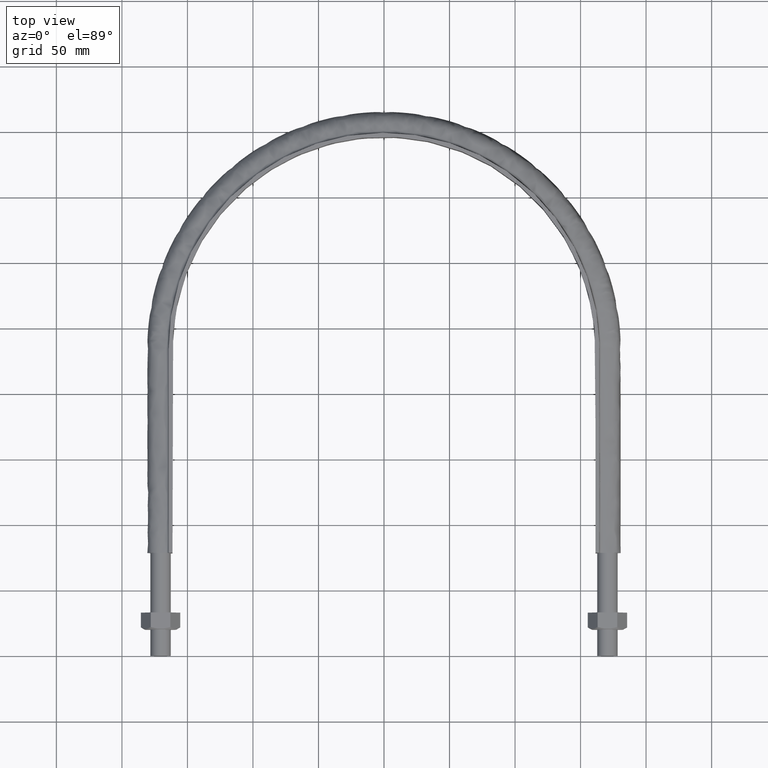
[diagram: clean part render]
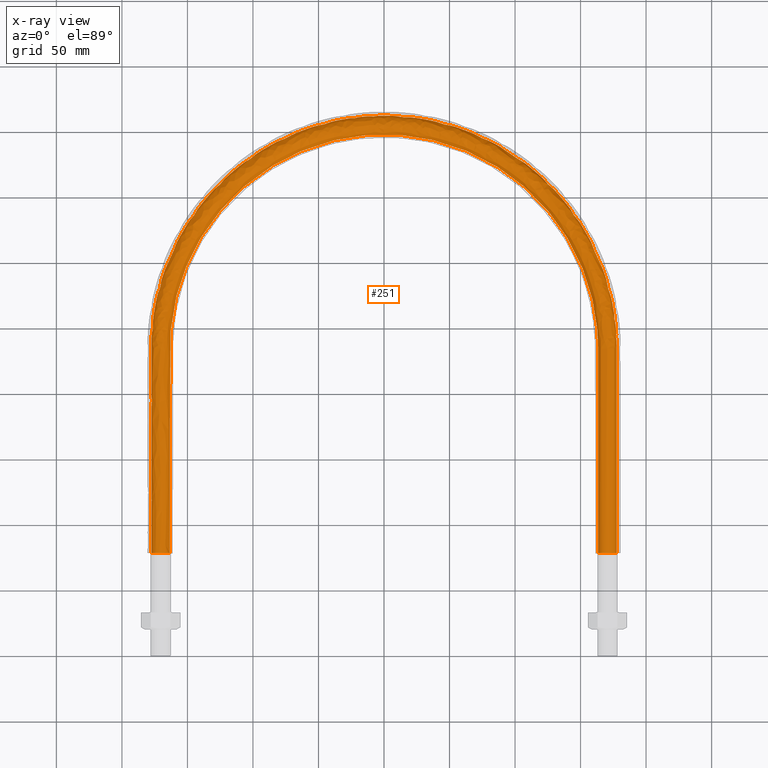
[diagram: x-ray — body ghosted, one internal face saturated and labeled with its STEP entity id]
A machine part, top view, then the same camera in x-ray: the body is ghosted and one INTERNAL B-rep face — a face not visible from any outside direction — is saturated and labeled: STEP entity #251.
In plain terms, the highlighted face is a freeform B-spline surface patch.
Its self-contained STEP definition (entity closure, byte-faithful):
#251 = ADVANCED_FACE( '', ( #341, #342 ), #343, .F. );
#341 = FACE_OUTER_BOUND( '', #639, .T. );
#342 = FACE_OUTER_BOUND( '', #640, .T. );
#343 = B_SPLINE_SURFACE_WITH_KNOTS( '', 3, 3, ( ( #641, #642, #643, #644, #645, #646, #647, #648, #649, #650, #651, #652, #653, #654, #655, #656, #657, #658 ), ( #659, #660, #661, #662, #663, #664, #665, #666, #667, #668, #669, #670, #671, #672, #673, #674, #675, #676 ), ( #677, #678, #679, #680, #681, #682, #683, #684, #685, #686, #687, #688, #689, #690, #691, #692, #693, #694 ), ( #695, #696, #697, #698, #699, #700, #701, #702, #703, #704, #705, #706, #707, #708, #709, #710, #711, #712 ), ( #713, #714, #715, #716, #717, #718, #719, #720, #721, #722, #723, #724, #725, #726, #727, #728, #729, #730 ), ( #731, #732, #733, #734, #735, #736, #737, #738, #739, #740, #741, #742, #743, #744, #745, #746, #747, #748 ), ( #749, #750, #751, #752, #753, #754, #755, #756, #757, #758, #759, #760, #761, #762, #763, #764, #765, #766 ), ( #767, #768, #769, #770, #771, #772, #773, #774, #775, #776, #777, #778, #779, #780, #781, #782, #783, #784 ), ( #785, #786, #787, #788, #789, #790, #791, #792, #793, #794, #795, #796, #797, #798, #799, #800, #801, #802 ), ( #803, #804, #805, #806, #807, #808, #809, #810, #811, #812, #813, #814, #815, #816, #817, #818, #819, #820 ), ( #821, #822, #823, #824, #825, #826, #827, #828, #829, #830, #831, #832, #833, #834, #835, #836, #837, #838 ) ), .UNSPECIFIED., .T., .F., .F., ( 2, 1, 1, 1, 1, 1, 1, 1, 1, 1, 1, 1, 2 ), ( 4, 3, 1, 1, 1, 1, 1, 1, 1, 1, 3, 4 ), ( -0.250000000000000, -0.125000000000000, 0.000000000000000, 0.125000000000000, 0.250000000000000, 0.375000000000000, 0.500000000000000, 0.625000000000000, 0.750000000000000, 0.875000000000000, 1.00000000000000, 1.12500000000000, 1.25000000000000 ), ( 0.000000000000000, 1.00000000000000, 2.00000000000000, 3.00000000000000, 4.00000000000000, 5.00000000000000, 6.00000000000000, 7.00000000000000, 8.00000000000000, 9.00000000000000, 10.0000000000000, 11.0000000000000 ), .UNSPECIFIED. );
#639 = EDGE_LOOP( '', ( #1741 ) );
#640 = EDGE_LOOP( '', ( #1742 ) );
#641 = CARTESIAN_POINT( '', ( 164.936357463272, 70.0100000000000, -5.56364253672768 ) );
#642 = CARTESIAN_POINT( '', ( 164.936357463272, 124.876666666667, -5.56364253672768 ) );
#643 = CARTESIAN_POINT( '', ( 164.936357463272, 179.743333333333, -5.56364253672768 ) );
#644 = CARTESIAN_POINT( '', ( 164.936357463272, 234.610000000000, -5.56364253672768 ) );
#645 = CARTESIAN_POINT( '', ( 164.936357463272, 253.792902082885, -5.56364253672768 ) );
#646 = CARTESIAN_POINT( '', ( 158.169065274017, 292.181944835107, -5.56364253672769 ) );
#647 = CARTESIAN_POINT( '', ( 128.940603391296, 342.803179668011, -5.56364253672768 ) );
#648 = CARTESIAN_POINT( '', ( 84.1600017789502, 380.379618278176, -5.56364253672769 ) );
#649 = CARTESIAN_POINT( '', ( 29.2284618827207, 400.372800644473, -5.56364253672768 ) );
#650 = CARTESIAN_POINT( '', ( -29.2284618827205, 400.372800644473, -5.56364253672769 ) );
#651 = CARTESIAN_POINT( '', ( -84.1600017789500, 380.379618278176, -5.56364253672768 ) );
#652 = CARTESIAN_POINT( '', ( -128.940603391296, 342.803179668011, -5.56364253672769 ) );
#653 = CARTESIAN_POINT( '', ( -158.169065274017, 292.181944835107, -5.56364253672769 ) );
#654 = CARTESIAN_POINT( '', ( -164.936357463272, 253.792902082885, -5.56364253672768 ) );
#655 = CARTESIAN_POINT( '', ( -164.936357463272, 234.610000000000, -5.56364253672768 ) );
#656 = CARTESIAN_POINT( '', ( -164.936357463272, 179.743333333333, -5.56364253672768 ) );
#657 = CARTESIAN_POINT( '', ( -164.936357463272, 124.876666666667, -5.56364253672769 ) );
#658 = CARTESIAN_POINT( '', ( -164.936357463272, 70.0100000000001, -5.56364253672769 ) );
#659 = CARTESIAN_POINT( '', ( 162.631821268364, 70.0100000000000, 0.000000000000000 ) );
#660 = CARTESIAN_POINT( '', ( 162.631821268364, 124.876666666667, 0.000000000000000 ) );
#661 = CARTESIAN_POINT( '', ( 162.631821268364, 179.743333333333, 0.000000000000000 ) );
#662 = CARTESIAN_POINT( '', ( 162.631821268364, 234.610000000000, 0.000000000000000 ) );
#663 = CARTESIAN_POINT( '', ( 162.631821268364, 253.522000810097, 0.000000000000000 ) );
#664 = CARTESIAN_POINT( '', ( 155.959083548672, 291.378866754423, 0.000000000000000 ) );
#665 = CARTESIAN_POINT( '', ( 127.139009782229, 341.291118061497, 0.000000000000000 ) );
#666 = CARTESIAN_POINT( '', ( 82.9840950641051, 378.342978911949, 0.000000000000000 ) );
#667 = CARTESIAN_POINT( '', ( 28.8200737664423, 398.056698383507, 0.000000000000000 ) );
#668 = CARTESIAN_POINT( '', ( -28.8200737664421, 398.056698383507, 0.000000000000000 ) );
#669 = CARTESIAN_POINT( '', ( -82.9840950641050, 378.342978911949, 0.000000000000000 ) );
#670 = CARTESIAN_POINT( '', ( -127.139009782229, 341.291118061497, 0.000000000000000 ) );
#671 = CARTESIAN_POINT( '', ( -155.959083548672, 291.378866754423, 0.000000000000000 ) );
#672 = CARTESIAN_POINT( '', ( -162.631821268364, 253.522000810097, 0.000000000000000 ) );
#673 = CARTESIAN_POINT( '', ( -162.631821268364, 234.610000000000, 0.000000000000000 ) );
#674 = CARTESIAN_POINT( '', ( -162.631821268364, 179.743333333333, 0.000000000000000 ) );
#675 = CARTESIAN_POINT( '', ( -162.631821268364, 124.876666666667, 0.000000000000000 ) );
#676 = CARTESIAN_POINT( '', ( -162.631821268364, 70.0100000000001, 0.000000000000000 ) );
#677 = CARTESIAN_POINT( '', ( 164.936357463272, 70.0100000000000, 5.56364253672769 ) );
#678 = CARTESIAN_POINT( '', ( 164.936357463272, 124.876666666667, 5.56364253672769 ) );
#679 = CARTESIAN_POINT( '', ( 164.936357463272, 179.743333333333, 5.56364253672769 ) );
#680 = CARTESIAN_POINT( '', ( 164.936357463272, 234.610000000000, 5.56364253672769 ) );
#681 = CARTESIAN_POINT( '', ( 164.936357463272, 253.792902082885, 5.56364253672769 ) );
#682 = CARTESIAN_POINT( '', ( 158.169065274017, 292.181944835107, 5.56364253672769 ) );
#683 = CARTESIAN_POINT( '', ( 128.940603391296, 342.803179668011, 5.56364253672769 ) );
#684 = CARTESIAN_POINT( '', ( 84.1600017789502, 380.379618278176, 5.56364253672769 ) );
#685 = CARTESIAN_POINT( '', ( 29.2284618827207, 400.372800644473, 5.56364253672769 ) );
#686 = CARTESIAN_POINT( '', ( -29.2284618827205, 400.372800644473, 5.56364253672769 ) );
#687 = CARTESIAN_POINT( '', ( -84.1600017789500, 380.379618278176, 5.56364253672769 ) );
#688 = CARTESIAN_POINT( '', ( -128.940603391296, 342.803179668011, 5.56364253672769 ) );
#689 = CARTESIAN_POINT( '', ( -158.169065274017, 292.181944835107, 5.56364253672769 ) );
#690 = CARTESIAN_POINT( '', ( -164.936357463272, 253.792902082885, 5.56364253672769 ) );
#691 = CARTESIAN_POINT( '', ( -164.936357463272, 234.610000000000, 5.56364253672769 ) );
#692 = CARTESIAN_POINT( '', ( -164.936357463272, 179.743333333333, 5.56364253672769 ) );
#693 = CARTESIAN_POINT( '', ( -164.936357463272, 124.876666666667, 5.56364253672769 ) );
#694 = CARTESIAN_POINT( '', ( -164.936357463272, 70.0100000000001, 5.56364253672769 ) );
#695 = CARTESIAN_POINT( '', ( 170.500000000000, 70.0100000000000, 7.86817873163615 ) );
#696 = CARTESIAN_POINT( '', ( 170.500000000000, 124.876666666667, 7.86817873163615 ) );
#697 = CARTESIAN_POINT( '', ( 170.500000000000, 179.743333333333, 7.86817873163615 ) );
#698 = CARTESIAN_POINT( '', ( 170.500000000000, 234.610000000000, 7.86817873163615 ) );
#699 = CARTESIAN_POINT( '', ( 170.500000000000, 254.446915609713, 7.86817873163615 ) );
#700 = CARTESIAN_POINT( '', ( 163.504433127941, 294.120746829140, 7.86817873163615 ) );
#701 = CARTESIAN_POINT( '', ( 133.290035116190, 346.453619305602, 7.86817873163614 ) );
#702 = CARTESIAN_POINT( '', ( 86.9988917180148, 385.296500657785, 7.86817873163615 ) );
#703 = CARTESIAN_POINT( '', ( 30.2143980117518, 405.964366134741, 7.86817873163615 ) );
#704 = CARTESIAN_POINT( '', ( -30.2143980117516, 405.964366134741, 7.86817873163615 ) );
#705 = CARTESIAN_POINT( '', ( -86.9988917180146, 385.296500657785, 7.86817873163615 ) );
#706 = CARTESIAN_POINT( '', ( -133.290035116190, 346.453619305602, 7.86817873163615 ) );
#707 = CARTESIAN_POINT( '', ( -163.504433127941, 294.120746829139, 7.86817873163616 ) );
#708 = CARTESIAN_POINT( '', ( -170.500000000000, 254.446915609713, 7.86817873163615 ) );
#709 = CARTESIAN_POINT( '', ( -170.500000000000, 234.610000000000, 7.86817873163615 ) );
#710 = CARTESIAN_POINT( '', ( -170.500000000000, 179.743333333333, 7.86817873163615 ) );
#711 = CARTESIAN_POINT( '', ( -170.500000000000, 124.876666666667, 7.86817873163615 ) );
#712 = CARTESIAN_POINT( '', ( -170.500000000000, 70.0100000000001, 7.86817873163615 ) );
#713 = CARTESIAN_POINT( '', ( 176.063642536728, 70.0100000000000, 5.56364253672769 ) );
#714 = CARTESIAN_POINT( '', ( 176.063642536728, 124.876666666667, 5.56364253672769 ) );
#715 = CARTESIAN_POINT( '', ( 176.063642536728, 179.743333333333, 5.56364253672769 ) );
#716 = CARTESIAN_POINT( '', ( 176.063642536728, 234.610000000000, 5.56364253672769 ) );
#717 = CARTESIAN_POINT( '', ( 176.063642536728, 255.100929136541, 5.56364253672769 ) );
#718 = CARTESIAN_POINT( '', ( 168.839800981866, 296.059548823172, 5.56364253672769 ) );
#719 = CARTESIAN_POINT( '', ( 137.639466841083, 350.104058943192, 5.56364253672769 ) );
#720 = CARTESIAN_POINT( '', ( 89.8377816570794, 390.213383037393, 5.56364253672769 ) );
#721 = CARTESIAN_POINT( '', ( 31.2003341407829, 411.555931625009, 5.56364253672769 ) );
#722 = CARTESIAN_POINT( '', ( -31.2003341407827, 411.555931625009, 5.56364253672769 ) );
#723 = CARTESIAN_POINT( '', ( -89.8377816570792, 390.213383037393, 5.56364253672769 ) );
#724 = CARTESIAN_POINT( '', ( -137.639466841083, 350.104058943192, 5.56364253672769 ) );
#725 = CARTESIAN_POINT( '', ( -168.839800981866, 296.059548823172, 5.56364253672769 ) );
#726 = CARTESIAN_POINT( '', ( -176.063642536728, 255.100929136541, 5.56364253672769 ) );
#727 = CARTESIAN_POINT( '', ( -176.063642536728, 234.610000000000, 5.56364253672769 ) );
#728 = CARTESIAN_POINT( '', ( -176.063642536728, 179.743333333333, 5.56364253672769 ) );
#729 = CARTESIAN_POINT( '', ( -176.063642536728, 124.876666666667, 5.56364253672769 ) );
#730 = CARTESIAN_POINT( '', ( -176.063642536728, 70.0100000000001, 5.56364253672769 ) );
#731 = CARTESIAN_POINT( '', ( 178.368178731636, 70.0100000000000, 9.63542166777172E-016 ) );
#732 = CARTESIAN_POINT( '', ( 178.368178731636, 124.876666666667, 9.63542166777172E-016 ) );
#733 = CARTESIAN_POINT( '', ( 178.368178731636, 179.743333333333, 9.63542166777172E-016 ) );
#734 = CARTESIAN_POINT( '', ( 178.368178731636, 234.610000000000, 9.63542166777172E-016 ) );
#735 = CARTESIAN_POINT( '', ( 178.368178731636, 255.371830409329, 9.63542166777172E-016 ) );
#736 = CARTESIAN_POINT( '', ( 171.049782707211, 296.862626903856, 9.63542166777173E-016 ) );
#737 = CARTESIAN_POINT( '', ( 139.441060450150, 351.616120549706, 9.63542166777171E-016 ) );
#738 = CARTESIAN_POINT( '', ( 91.0136883719245, 392.250022403620, 9.63542166777173E-016 ) );
#739 = CARTESIAN_POINT( '', ( 31.6087222570612, 413.872033885975, 9.63542166777172E-016 ) );
#740 = CARTESIAN_POINT( '', ( -31.6087222570610, 413.872033885975, 9.63542166777173E-016 ) );
#741 = CARTESIAN_POINT( '', ( -91.0136883719243, 392.250022403620, 9.63542166777172E-016 ) );
#742 = CARTESIAN_POINT( '', ( -139.441060450150, 351.616120549706, 9.63542166777173E-016 ) );
#743 = CARTESIAN_POINT( '', ( -171.049782707211, 296.862626903856, 9.63542166777173E-016 ) );
#744 = CARTESIAN_POINT( '', ( -178.368178731636, 255.371830409329, 9.63542166777172E-016 ) );
#745 = CARTESIAN_POINT( '', ( -178.368178731636, 234.610000000000, 9.63542166777172E-016 ) );
#746 = CARTESIAN_POINT( '', ( -178.368178731636, 179.743333333333, 9.63542166777172E-016 ) );
#747 = CARTESIAN_POINT( '', ( -178.368178731636, 124.876666666667, 9.63542166777172E-016 ) );
#748 = CARTESIAN_POINT( '', ( -178.368178731636, 70.0100000000001, 9.63542166777172E-016 ) );
#749 = CARTESIAN_POINT( '', ( 176.063642536728, 70.0100000000000, -5.56364253672769 ) );
#750 = CARTESIAN_POINT( '', ( 176.063642536728, 124.876666666667, -5.56364253672769 ) );
#751 = CARTESIAN_POINT( '', ( 176.063642536728, 179.743333333333, -5.56364253672769 ) );
#752 = CARTESIAN_POINT( '', ( 176.063642536728, 234.610000000000, -5.56364253672769 ) );
#753 = CARTESIAN_POINT( '', ( 176.063642536728, 255.100929136541, -5.56364253672769 ) );
#754 = CARTESIAN_POINT( '', ( 168.839800981866, 296.059548823172, -5.56364253672769 ) );
#755 = CARTESIAN_POINT( '', ( 137.639466841083, 350.104058943192, -5.56364253672769 ) );
#756 = CARTESIAN_POINT( '', ( 89.8377816570794, 390.213383037393, -5.56364253672769 ) );
#757 = CARTESIAN_POINT( '', ( 31.2003341407829, 411.555931625009, -5.56364253672769 ) );
#758 = CARTESIAN_POINT( '', ( -31.2003341407827, 411.555931625009, -5.56364253672769 ) );
#759 = CARTESIAN_POINT( '', ( -89.8377816570792, 390.213383037393, -5.56364253672769 ) );
#760 = CARTESIAN_POINT( '', ( -137.639466841083, 350.104058943192, -5.56364253672769 ) );
#761 = CARTESIAN_POINT( '', ( -168.839800981866, 296.059548823172, -5.56364253672769 ) );
#762 = CARTESIAN_POINT( '', ( -176.063642536728, 255.100929136541, -5.56364253672769 ) );
#763 = CARTESIAN_POINT( '', ( -176.063642536728, 234.610000000000, -5.56364253672769 ) );
#764 = CARTESIAN_POINT( '', ( -176.063642536728, 179.743333333333, -5.56364253672769 ) );
#765 = CARTESIAN_POINT( '', ( -176.063642536728, 124.876666666667, -5.56364253672769 ) );
#766 = CARTESIAN_POINT( '', ( -176.063642536728, 70.0100000000001, -5.56364253672769 ) );
#767 = CARTESIAN_POINT( '', ( 170.500000000000, 70.0100000000000, -7.86817873163615 ) );
#768 = CARTESIAN_POINT( '', ( 170.500000000000, 124.876666666667, -7.86817873163615 ) );
#769 = CARTESIAN_POINT( '', ( 170.500000000000, 179.743333333333, -7.86817873163615 ) );
#770 = CARTESIAN_POINT( '', ( 170.500000000000, 234.610000000000, -7.86817873163615 ) );
#771 = CARTESIAN_POINT( '', ( 170.500000000000, 254.446915609713, -7.86817873163615 ) );
#772 = CARTESIAN_POINT( '', ( 163.504433127941, 294.120746829140, -7.86817873163615 ) );
#773 = CARTESIAN_POINT( '', ( 133.290035116190, 346.453619305602, -7.86817873163614 ) );
#774 = CARTESIAN_POINT( '', ( 86.9988917180148, 385.296500657785, -7.86817873163615 ) );
#775 = CARTESIAN_POINT( '', ( 30.2143980117518, 405.964366134741, -7.86817873163615 ) );
#776 = CARTESIAN_POINT( '', ( -30.2143980117516, 405.964366134741, -7.86817873163615 ) );
#777 = CARTESIAN_POINT( '', ( -86.9988917180146, 385.296500657785, -7.86817873163615 ) );
#778 = CARTESIAN_POINT( '', ( -133.290035116190, 346.453619305602, -7.86817873163615 ) );
#779 = CARTESIAN_POINT( '', ( -163.504433127941, 294.120746829139, -7.86817873163616 ) );
#780 = CARTESIAN_POINT( '', ( -170.500000000000, 254.446915609713, -7.86817873163615 ) );
#781 = CARTESIAN_POINT( '', ( -170.500000000000, 234.610000000000, -7.86817873163615 ) );
#782 = CARTESIAN_POINT( '', ( -170.500000000000, 179.743333333333, -7.86817873163615 ) );
#783 = CARTESIAN_POINT( '', ( -170.500000000000, 124.876666666667, -7.86817873163615 ) );
#784 = CARTESIAN_POINT( '', ( -170.500000000000, 70.0100000000001, -7.86817873163615 ) );
#785 = CARTESIAN_POINT( '', ( 164.936357463272, 70.0100000000000, -5.56364253672768 ) );
#786 = CARTESIAN_POINT( '', ( 164.936357463272, 124.876666666667, -5.56364253672768 ) );
#787 = CARTESIAN_POINT( '', ( 164.936357463272, 179.743333333333, -5.56364253672768 ) );
#788 = CARTESIAN_POINT( '', ( 164.936357463272, 234.610000000000, -5.56364253672768 ) );
#789 = CARTESIAN_POINT( '', ( 164.936357463272, 253.792902082885, -5.56364253672768 ) );
#790 = CARTESIAN_POINT( '', ( 158.169065274017, 292.181944835107, -5.56364253672769 ) );
#791 = CARTESIAN_POINT( '', ( 128.940603391296, 342.803179668011, -5.56364253672768 ) );
#792 = CARTESIAN_POINT( '', ( 84.1600017789502, 380.379618278176, -5.56364253672769 ) );
#793 = CARTESIAN_POINT( '', ( 29.2284618827207, 400.372800644473, -5.56364253672768 ) );
#794 = CARTESIAN_POINT( '', ( -29.2284618827205, 400.372800644473, -5.56364253672769 ) );
#795 = CARTESIAN_POINT( '', ( -84.1600017789500, 380.379618278176, -5.56364253672768 ) );
#796 = CARTESIAN_POINT( '', ( -128.940603391296, 342.803179668011, -5.56364253672769 ) );
#797 = CARTESIAN_POINT( '', ( -158.169065274017, 292.181944835107, -5.56364253672769 ) );
#798 = CARTESIAN_POINT( '', ( -164.936357463272, 253.792902082885, -5.56364253672768 ) );
#799 = CARTESIAN_POINT( '', ( -164.936357463272, 234.610000000000, -5.56364253672768 ) );
#800 = CARTESIAN_POINT( '', ( -164.936357463272, 179.743333333333, -5.56364253672768 ) );
#801 = CARTESIAN_POINT( '', ( -164.936357463272, 124.876666666667, -5.56364253672769 ) );
#802 = CARTESIAN_POINT( '', ( -164.936357463272, 70.0100000000001, -5.56364253672769 ) );
#803 = CARTESIAN_POINT( '', ( 162.631821268364, 70.0100000000000, 0.000000000000000 ) );
#804 = CARTESIAN_POINT( '', ( 162.631821268364, 124.876666666667, 0.000000000000000 ) );
#805 = CARTESIAN_POINT( '', ( 162.631821268364, 179.743333333333, 0.000000000000000 ) );
#806 = CARTESIAN_POINT( '', ( 162.631821268364, 234.610000000000, 0.000000000000000 ) );
#807 = CARTESIAN_POINT( '', ( 162.631821268364, 253.522000810097, 0.000000000000000 ) );
#808 = CARTESIAN_POINT( '', ( 155.959083548672, 291.378866754423, 0.000000000000000 ) );
#809 = CARTESIAN_POINT( '', ( 127.139009782229, 341.291118061497, 0.000000000000000 ) );
#810 = CARTESIAN_POINT( '', ( 82.9840950641051, 378.342978911949, 0.000000000000000 ) );
#811 = CARTESIAN_POINT( '', ( 28.8200737664423, 398.056698383507, 0.000000000000000 ) );
#812 = CARTESIAN_POINT( '', ( -28.8200737664421, 398.056698383507, 0.000000000000000 ) );
#813 = CARTESIAN_POINT( '', ( -82.9840950641050, 378.342978911949, 0.000000000000000 ) );
#814 = CARTESIAN_POINT( '', ( -127.139009782229, 341.291118061497, 0.000000000000000 ) );
#815 = CARTESIAN_POINT( '', ( -155.959083548672, 291.378866754423, 0.000000000000000 ) );
#816 = CARTESIAN_POINT( '', ( -162.631821268364, 253.522000810097, 0.000000000000000 ) );
#817 = CARTESIAN_POINT( '', ( -162.631821268364, 234.610000000000, 0.000000000000000 ) );
#818 = CARTESIAN_POINT( '', ( -162.631821268364, 179.743333333333, 0.000000000000000 ) );
#819 = CARTESIAN_POINT( '', ( -162.631821268364, 124.876666666667, 0.000000000000000 ) );
#820 = CARTESIAN_POINT( '', ( -162.631821268364, 70.0100000000001, 0.000000000000000 ) );
#821 = CARTESIAN_POINT( '', ( 164.936357463272, 70.0100000000000, 5.56364253672769 ) );
#822 = CARTESIAN_POINT( '', ( 164.936357463272, 124.876666666667, 5.56364253672769 ) );
#823 = CARTESIAN_POINT( '', ( 164.936357463272, 179.743333333333, 5.56364253672769 ) );
#824 = CARTESIAN_POINT( '', ( 164.936357463272, 234.610000000000, 5.56364253672769 ) );
#825 = CARTESIAN_POINT( '', ( 164.936357463272, 253.792902082885, 5.56364253672769 ) );
#826 = CARTESIAN_POINT( '', ( 158.169065274017, 292.181944835107, 5.56364253672769 ) );
#827 = CARTESIAN_POINT( '', ( 128.940603391296, 342.803179668011, 5.56364253672769 ) );
#828 = CARTESIAN_POINT( '', ( 84.1600017789502, 380.379618278176, 5.56364253672769 ) );
#829 = CARTESIAN_POINT( '', ( 29.2284618827207, 400.372800644473, 5.56364253672769 ) );
#830 = CARTESIAN_POINT( '', ( -29.2284618827205, 400.372800644473, 5.56364253672769 ) );
#831 = CARTESIAN_POINT( '', ( -84.1600017789500, 380.379618278176, 5.56364253672769 ) );
#832 = CARTESIAN_POINT( '', ( -128.940603391296, 342.803179668011, 5.56364253672769 ) );
#833 = CARTESIAN_POINT( '', ( -158.169065274017, 292.181944835107, 5.56364253672769 ) );
#834 = CARTESIAN_POINT( '', ( -164.936357463272, 253.792902082885, 5.56364253672769 ) );
#835 = CARTESIAN_POINT( '', ( -164.936357463272, 234.610000000000, 5.56364253672769 ) );
#836 = CARTESIAN_POINT( '', ( -164.936357463272, 179.743333333333, 5.56364253672769 ) );
#837 = CARTESIAN_POINT( '', ( -164.936357463272, 124.876666666667, 5.56364253672769 ) );
#838 = CARTESIAN_POINT( '', ( -164.936357463272, 70.0100000000001, 5.56364253672769 ) );
#1741 = ORIENTED_EDGE( '', *, *, #1975, .F. );
#1742 = ORIENTED_EDGE( '', *, *, #1976, .F. );
#1975 = EDGE_CURVE( '', #2091, #2091, #2092, .T. );
#1976 = EDGE_CURVE( '', #2093, #2093, #2094, .T. );
#2091 = VERTEX_POINT( '', #2542 );
#2092 = B_SPLINE_CURVE_WITH_KNOTS( '', 3, ( #2543, #2544, #2545, #2546, #2547, #2548, #2549, #2550, #2551, #2552, #2553 ), .UNSPECIFIED., .T., .F., ( 4, 1, 1, 1, 1, 1, 1, 1, 4 ), ( 0.000000000000000, 0.00554477700879899, 0.0110895540175980, 0.0166343310263970, 0.0221791080351960, 0.0277238850439950, 0.0332686620527940, 0.0388134390615930, 0.0443582160703919 ), .UNSPECIFIED. );
#2093 = VERTEX_POINT( '', #2554 );
#2094 = B_SPLINE_CURVE_WITH_KNOTS( '', 3, ( #2555, #2556, #2557, #2558, #2559, #2560, #2561, #2562, #2563, #2564, #2565 ), .UNSPECIFIED., .T., .F., ( 4, 1, 1, 1, 1, 1, 1, 1, 4 ), ( 0.000000000000000, 0.00554477700879883, 0.0110895540175977, 0.0166343310263965, 0.0221791080351953, 0.0277238850439942, 0.0332686620527930, 0.0388134390615918, 0.0443582160703907 ), .UNSPECIFIED. );
#2542 = CARTESIAN_POINT( '', ( -163.400000000000, 78.5100000000002, -4.16473175365204E-017 ) );
#2543 = CARTESIAN_POINT( '', ( -163.400000000000, 78.5100000000002, -1.08420217248550E-016 ) );
#2544 = CARTESIAN_POINT( '', ( -163.400000000000, 78.5100000000002, -1.85454751224256 ) );
#2545 = CARTESIAN_POINT( '', ( -164.936357463272, 78.5100000000002, -5.56364253672769 ) );
#2546 = CARTESIAN_POINT( '', ( -170.500000000000, 78.5100000000002, -7.86817873163615 ) );
#2547 = CARTESIAN_POINT( '', ( -176.063642536728, 78.5100000000002, -5.56364253672769 ) );
#2548 = CARTESIAN_POINT( '', ( -178.368178731636, 78.5100000000002, 9.63542166777172E-016 ) );
#2549 = CARTESIAN_POINT( '', ( -176.063642536728, 78.5100000000002, 5.56364253672769 ) );
#2550 = CARTESIAN_POINT( '', ( -170.500000000000, 78.5100000000002, 7.86817873163615 ) );
#2551 = CARTESIAN_POINT( '', ( -164.936357463272, 78.5100000000002, 5.56364253672769 ) );
#2552 = CARTESIAN_POINT( '', ( -163.400000000000, 78.5100000000002, 1.85454751224256 ) );
#2553 = CARTESIAN_POINT( '', ( -163.400000000000, 78.5100000000002, -1.08420217248550E-016 ) );
#2554 = CARTESIAN_POINT( '', ( 163.400000000000, 78.5100000000001, 1.51788304147971E-015 ) );
#2555 = CARTESIAN_POINT( '', ( 163.400000000000, 78.5100000000001, 1.19262238973405E-015 ) );
#2556 = CARTESIAN_POINT( '', ( 163.400000000000, 78.5100000000001, 1.85454751224256 ) );
#2557 = CARTESIAN_POINT( '', ( 164.936357463272, 78.5100000000001, 5.56364253672769 ) );
#2558 = CARTESIAN_POINT( '', ( 170.500000000000, 78.5100000000001, 7.86817873163615 ) );
#2559 = CARTESIAN_POINT( '', ( 176.063642536728, 78.5100000000001, 5.56364253672769 ) );
#2560 = CARTESIAN_POINT( '', ( 178.368178731636, 78.5100000000001, 9.63542166777172E-016 ) );
#2561 = CARTESIAN_POINT( '', ( 176.063642536728, 78.5100000000001, -5.56364253672769 ) );
#2562 = CARTESIAN_POINT( '', ( 170.500000000000, 78.5100000000001, -7.86817873163615 ) );
#2563 = CARTESIAN_POINT( '', ( 164.936357463272, 78.5100000000001, -5.56364253672768 ) );
#2564 = CARTESIAN_POINT( '', ( 163.400000000000, 78.5100000000001, -1.85454751224256 ) );
#2565 = CARTESIAN_POINT( '', ( 163.400000000000, 78.5100000000001, 1.19262238973405E-015 ) );